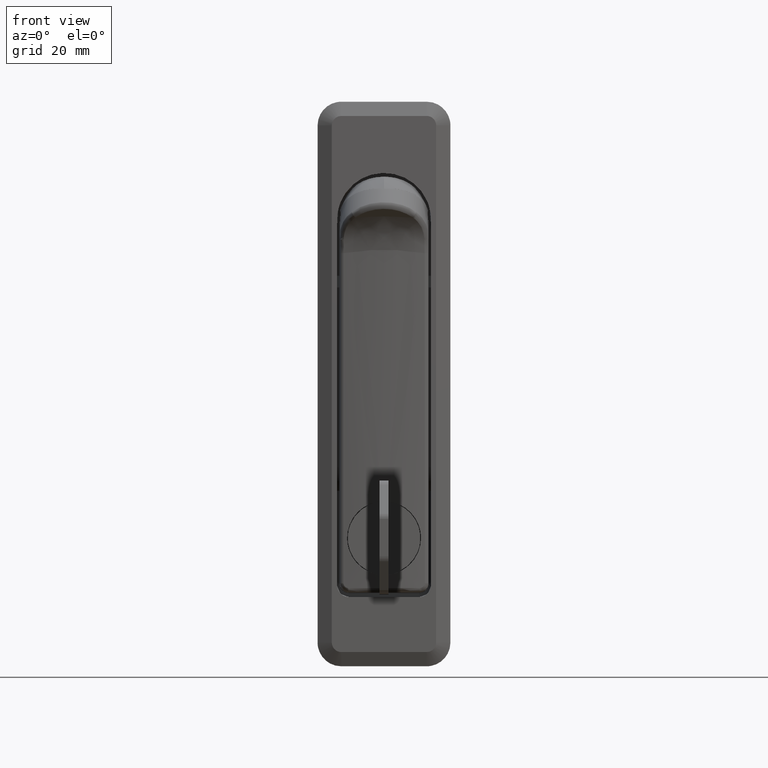
[diagram: clean part render]
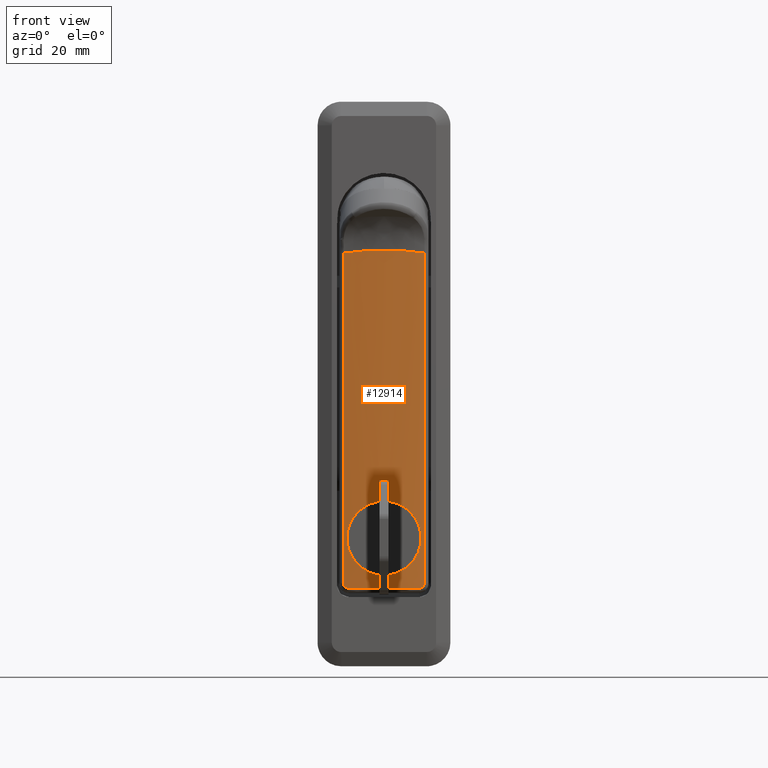
[diagram: same view with one face highlighted and labeled with its STEP entity id]
A machine part, front view. The second image highlights one B-rep face of the part: STEP entity #12914.
In plain terms, the highlighted face is a freeform B-spline surface patch.
Its self-contained STEP definition (entity closure, byte-faithful):
#8791=CARTESIAN_POINT('',(-3.491197107456163,7.797327951983970,-67.204189223243148));
#8792=VERTEX_POINT('',#8791);
#8798=CARTESIAN_POINT('',(-3.999998323577009,-0.002940226353813,-74.799999445837756));
#8799=VERTEX_POINT('',#8798);
#8800=CARTESIAN_POINT('',(-3.999998323577009,-0.002940226353813,-74.799999445837756));
#8801=CARTESIAN_POINT('',(-4.000023565192867,0.506348979247188,-74.800191421601241));
#8802=CARTESIAN_POINT('',(-3.993564944124163,1.012901770533408,-74.750984764370372));
#8803=CARTESIAN_POINT('',(-3.977643344512823,1.642588843660261,-74.626164489070774));
#8804=CARTESIAN_POINT('',(-3.974055729561870,1.768649122896287,-74.597919281776839));
#8805=CARTESIAN_POINT('',(-3.966188528740572,2.017853901839486,-74.535566507720446));
#8806=CARTESIAN_POINT('',(-3.961905189786248,2.141224163243140,-74.501430114660266));
#8807=CARTESIAN_POINT('',(-3.948070691180396,2.507708299198606,-74.390303111173637));
#8808=CARTESIAN_POINT('',(-3.927000421301342,2.986699852373011,-74.218927779461950));
#8809=CARTESIAN_POINT('',(-3.901346324607137,3.446693757243694,-74.001817372635699));
#8810=CARTESIAN_POINT('',(-3.880636226128714,3.784475307298896,-73.821585635172937));
#8811=CARTESIAN_POINT('',(-3.873487982194553,3.895864713851485,-73.758603372463725));
#8812=CARTESIAN_POINT('',(-3.858744604816455,4.116192703677323,-73.626721563491131));
#8813=CARTESIAN_POINT('',(-3.851146098197580,4.225149434575144,-73.557782994536964));
#8814=CARTESIAN_POINT('',(-3.812591990583683,4.757792707826024,-73.202092227255534));
#8815=CARTESIAN_POINT('',(-3.779635431371585,5.150345366779688,-72.879833049430673));
#8816=CARTESIAN_POINT('',(-3.729853976965031,5.690126189849043,-72.341074994834429));
#8817=CARTESIAN_POINT('',(-3.713200782840429,5.861819150159800,-72.152193949326858));
#8818=CARTESIAN_POINT('',(-3.688494300465722,6.106617365164051,-71.854454119026101));
#8819=CARTESIAN_POINT('',(-3.680327287910312,6.185857291302507,-71.753054954678703));
#8820=CARTESIAN_POINT('',(-3.664317396467136,6.338418430767005,-71.547616202591996));
#8821=CARTESIAN_POINT('',(-3.656455033264991,6.411933462873660,-71.443344023198009));
#8822=CARTESIAN_POINT('',(-3.617986602915667,6.765893003601817,-70.914329293289299));
#8823=CARTESIAN_POINT('',(-3.589908759333716,7.005885056853677,-70.466845538564328));
#8824=CARTESIAN_POINT('',(-3.560238116442298,7.251281287012525,-69.876673122324249));
#8825=CARTESIAN_POINT('',(-3.554575641529487,7.297606008987883,-69.757083870374458));
#8826=CARTESIAN_POINT('',(-3.543848011135010,7.384627159694803,-69.514725866104925));
#8827=CARTESIAN_POINT('',(-3.538813712189043,7.425073370699693,-69.392626629676556));
#8828=CARTESIAN_POINT('',(-3.524802663092019,7.536854892888210,-69.025182583112709));
#8829=CARTESIAN_POINT('',(-3.516888259161297,7.598896527352858,-68.778029785047750));
#8830=CARTESIAN_POINT('',(-3.504080386100771,7.698549987263378,-68.279431779770533));
#8831=CARTESIAN_POINT('',(-3.499186665551404,7.736160962401452,-68.027986431007491));
#8832=CARTESIAN_POINT('',(-3.493428263719736,7.780304268892214,-67.585544348059571));
#8833=CARTESIAN_POINT('',(-3.491853601356006,7.792322462566037,-67.395435253321082));
#8834=CARTESIAN_POINT('',(-3.491197107456163,7.797327951983970,-67.204189223243148));
#8835=B_SPLINE_CURVE_WITH_KNOTS('',3,(#8800,#8801,#8802,#8803,#8804,#8805,#8806,#8807,#8808,#8809,#8810,#8811,#8812,#8813,#8814,#8815,#8816,#8817,#8818,#8819,#8820,#8821,#8822,#8823,#8824,#8825,#8826,#8827,#8828,#8829,#8830,#8831,#8832,#8833,#8834),.UNSPECIFIED.,.F.,.U.,(4,2,2,2,1,2,2,2,2,2,2,2,2,2,2,2,2,4),(0.500000000000024,0.531250000000024,0.539062500000023,0.546875000000023,0.562500000000023,0.578125000000022,0.585937500000022,0.593750000000021,0.625000000000020,0.640625000000020,0.648437500000020,0.656250000000019,0.687500000000018,0.695312500000018,0.703125000000018,0.718750000000018,0.734375000000018,0.746009069075564),.UNSPECIFIED.);
#8836=EDGE_CURVE('',#8799,#8792,#8835,.T.);
#8838=CARTESIAN_POINT('',(-3.491188467564471,-7.797336506991591,-66.795819559280091));
#8839=VERTEX_POINT('',#8838);
#8840=CARTESIAN_POINT('',(-3.491188467564471,-7.797336506991591,-66.795819559280091));
#8841=CARTESIAN_POINT('',(-3.490959990383730,-7.799068884119842,-66.862381012040998));
#8842=CARTESIAN_POINT('',(-3.490843060125372,-7.799952315337134,-66.928991188665165));
#8843=CARTESIAN_POINT('',(-3.490819565078890,-7.800131705401326,-67.250288414561780));
#8844=CARTESIAN_POINT('',(-3.492435743652619,-7.787836756943453,-67.505640703274210));
#8845=CARTESIAN_POINT('',(-3.496534153015341,-7.756425566878799,-67.825751581145795));
#8846=CARTESIAN_POINT('',(-3.497459249515003,-7.749327731155067,-67.889903529215530));
#8847=CARTESIAN_POINT('',(-3.499507350297311,-7.733586755187108,-68.017667004227562));
#8848=CARTESIAN_POINT('',(-3.502877215829414,-7.707650228929772,-68.208634959493452));
#8849=CARTESIAN_POINT('',(-3.507120937682401,-7.674820454726839,-68.397595323767717));
#8850=CARTESIAN_POINT('',(-3.523125144799989,-7.550320981061131,-69.023076955285916));
#8851=CARTESIAN_POINT('',(-3.541875613996795,-7.402940252889314,-69.509550388619488));
#8852=CARTESIAN_POINT('',(-3.571444495669878,-7.158570581374277,-70.100179075634685));
#8853=CARTESIAN_POINT('',(-3.577664689181376,-7.106662270201758,-70.217423866409078));
#8854=CARTESIAN_POINT('',(-3.590684030624052,-6.996653452884679,-70.450117367004012));
#8855=CARTESIAN_POINT('',(-3.597448934922697,-6.938838864006331,-70.564939287788718));
#8856=CARTESIAN_POINT('',(-3.618333053365614,-6.757872187923476,-70.903402247021333));
#8857=CARTESIAN_POINT('',(-3.647821422338755,-6.495945528469384,-71.340016381742117));
#8858=CARTESIAN_POINT('',(-3.679684918339738,-6.193644932315226,-71.747994057147977));
#8859=CARTESIAN_POINT('',(-3.704136628064298,-5.951671101688135,-72.043187396869612));
#8860=CARTESIAN_POINT('',(-3.712379541522247,-5.868467201488850,-72.139783643652919));
#8861=CARTESIAN_POINT('',(-3.728992920677049,-5.696892714902044,-72.329324605847631));
#8862=CARTESIAN_POINT('',(-3.737372218638560,-5.608426703888169,-72.422364650071870));
#8863=CARTESIAN_POINT('',(-3.779347631015695,-5.153902318502097,-72.877234812955422));
#8864=CARTESIAN_POINT('',(-3.812339124571177,-4.760557199693451,-73.199593327084301));
#8865=CARTESIAN_POINT('',(-3.858233848058222,-4.127515446581851,-73.623297195465454));
#8866=CARTESIAN_POINT('',(-3.872935837709294,-3.909277535282653,-73.754484629209273));
#8867=CARTESIAN_POINT('',(-3.893755583160361,-3.570799524000098,-73.935831377022652));
#8868=CARTESIAN_POINT('',(-3.900504425012709,-3.455851382316552,-73.993826802935573));
#8869=CARTESIAN_POINT('',(-3.913462068071687,-3.223415051144678,-74.103951009254232));
#8870=CARTESIAN_POINT('',(-3.919652182639775,-3.106290149026580,-74.155925656921269));
#8871=CARTESIAN_POINT('',(-3.949077113794410,-2.516216653658580,-74.400663450505121));
#8872=CARTESIAN_POINT('',(-3.967733947392923,-2.030046964471589,-74.548453878626503));
#8873=CARTESIAN_POINT('',(-3.983682294353366,-1.404746820053529,-74.673522654884877));
#8874=CARTESIAN_POINT('',(-3.986503265551177,-1.278799549658105,-74.695525952652048));
#8875=CARTESIAN_POINT('',(-3.991374994977119,-1.025099640754837,-74.733409299674051));
#8876=CARTESIAN_POINT('',(-3.993429795015630,-0.896983985562943,-74.749320580467838));
#8877=CARTESIAN_POINT('',(-3.998352406828189,-0.512918099962745,-74.787369056681015));
#8878=CARTESIAN_POINT('',(-3.999985845029932,-0.257584697954178,-74.799903460879591));
#8879=CARTESIAN_POINT('',(-3.999998323577009,-0.002940226353813,-74.799999445837756));
#8880=B_SPLINE_CURVE_WITH_KNOTS('',3,(#8840,#8841,#8842,#8843,#8844,#8845,#8846,#8847,#8848,#8849,#8850,#8851,#8852,#8853,#8854,#8855,#8856,#8857,#8858,#8859,#8860,#8861,#8862,#8863,#8864,#8865,#8866,#8867,#8868,#8869,#8870,#8871,#8872,#8873,#8874,#8875,#8876,#8877,#8878,#8879),.UNSPECIFIED.,.F.,.U.,(4,2,2,2,1,2,2,2,2,1,2,2,2,2,2,2,2,2,2,2,4),(0.245909718808644,0.250000000000012,0.265625000000014,0.269531250000014,0.273437500000015,0.281250000000015,0.312500000000020,0.320312500000021,0.328125000000021,0.343750000000022,0.359375000000024,0.367187500000024,0.375000000000024,0.406250000000024,0.421875000000025,0.429687500000025,0.437500000000024,0.468750000000024,0.476562500000024,0.484375000000024,0.500000000000024),.UNSPECIFIED.);
#8881=EDGE_CURVE('',#8839,#8799,#8880,.T.);
#8957=CARTESIAN_POINT('',(-3.999998395618100,1.984090E-014,-59.200000000000003));
#8958=VERTEX_POINT('',#8957);
#8959=CARTESIAN_POINT('',(-3.999998395618100,1.984090E-014,-59.200000000000003));
#8960=CARTESIAN_POINT('',(-3.999998395618088,-0.515889338633278,-59.200000008262400));
#8961=CARTESIAN_POINT('',(-3.993350817766681,-1.023049431081741,-59.250676111453622));
#8962=CARTESIAN_POINT('',(-3.974367000252409,-1.771255986908472,-59.399519055839548));
#8963=CARTESIAN_POINT('',(-3.966535884138723,-2.018553846185001,-59.461362221205562));
#8964=CARTESIAN_POINT('',(-3.952652385703019,-2.386276885062024,-59.572882104289327));
#8965=CARTESIAN_POINT('',(-3.947657103286390,-2.508567609592859,-59.613279633587140));
#8966=CARTESIAN_POINT('',(-3.937027428036526,-2.750862550551177,-59.700047780636581));
#8967=CARTESIAN_POINT('',(-3.931413619473878,-2.870439949596608,-59.746249756601259));
#8968=CARTESIAN_POINT('',(-3.901980187655366,-3.460643254536340,-59.991061130357927));
#8969=CARTESIAN_POINT('',(-3.874071100749123,-3.908437458134178,-60.230677012453327));
#8970=CARTESIAN_POINT('',(-3.835727735686382,-4.438101312328104,-60.584436774813078));
#8971=CARTESIAN_POINT('',(-3.827886185041884,-4.542516514675999,-60.657925462469727));
#8972=CARTESIAN_POINT('',(-3.811908435864296,-4.748265723171206,-60.810465710819557));
#8973=CARTESIAN_POINT('',(-3.803749077827597,-4.849873721488221,-60.889749637675720));
#8974=CARTESIAN_POINT('',(-3.779115722099996,-5.147497015835997,-61.134070625503128));
#8975=CARTESIAN_POINT('',(-3.762490707969874,-5.336386147855291,-61.305484799353103));
#8976=CARTESIAN_POINT('',(-3.712729072197590,-5.875367766462524,-61.844588008489602));
#8977=CARTESIAN_POINT('',(-3.679697279676109,-6.198041491101114,-62.236897318762409));
#8978=CARTESIAN_POINT('',(-3.640962075699452,-6.554426797853124,-62.769652445715217));
#8979=CARTESIAN_POINT('',(-3.633326358417016,-6.623482424806859,-62.878610615169563));
#8980=CARTESIAN_POINT('',(-3.618524066059667,-6.755421207072593,-63.098634894236334));
#8981=CARTESIAN_POINT('',(-3.611342883004288,-6.818444235516239,-63.209882585169282));
#8982=CARTESIAN_POINT('',(-3.590525663228052,-6.998829714220676,-63.547270977299462));
#8983=CARTESIAN_POINT('',(-3.564707075701675,-7.216228653350276,-64.006825912988646));
#8984=CARTESIAN_POINT('',(-3.543451425375061,-7.388010228921909,-64.485567727223426));
#8985=CARTESIAN_POINT('',(-3.529480582204292,-7.499468801437466,-64.851944717641643));
#8986=CARTESIAN_POINT('',(-3.525152177716926,-7.533720201596373,-64.975292645955022));
#8987=CARTESIAN_POINT('',(-3.517197245995261,-7.596308971304514,-65.224481436244702));
#8988=CARTESIAN_POINT('',(-3.513568201217277,-7.624665234918170,-65.350507081297053));
#8989=CARTESIAN_POINT('',(-3.499140822988542,-7.736901005513666,-65.914023502702790));
#8990=CARTESIAN_POINT('',(-3.492705570104087,-7.785833946645108,-66.353847403243989));
#8991=CARTESIAN_POINT('',(-3.491188467564471,-7.797336506991591,-66.795819559280091));
#8992=B_SPLINE_CURVE_WITH_KNOTS('',3,(#8959,#8960,#8961,#8962,#8963,#8964,#8965,#8966,#8967,#8968,#8969,#8970,#8971,#8972,#8973,#8974,#8975,#8976,#8977,#8978,#8979,#8980,#8981,#8982,#8983,#8984,#8985,#8986,#8987,#8988,#8989,#8990,#8991),.UNSPECIFIED.,.F.,.U.,(4,2,2,2,2,2,2,2,2,2,2,2,1,2,2,2,4),(0.0,0.031250000000001,0.046875000000001,0.054687500000001,0.062500000000002,0.093750000000003,0.101562500000003,0.109375000000004,0.125000000000004,0.156250000000004,0.164062500000005,0.171875000000005,0.187500000000006,0.203125000000007,0.210937500000007,0.218750000000008,0.245909718808644),.UNSPECIFIED.);
#8993=EDGE_CURVE('',#8958,#8839,#8992,.T.);
#8995=CARTESIAN_POINT('',(-3.491197107456163,7.797327951983970,-67.204189223243148));
#8996=CARTESIAN_POINT('',(-3.490971833450630,7.799045035245899,-67.138584516487825));
#8997=CARTESIAN_POINT('',(-3.490854605030716,7.799936896765336,-67.072846020577984));
#8998=CARTESIAN_POINT('',(-3.490786053458983,7.800457367762875,-66.491226793549316));
#8999=CARTESIAN_POINT('',(-3.497429316561616,7.750261267879341,-65.984053299867398));
#9000=CARTESIAN_POINT('',(-3.516480946701881,7.602081566373941,-65.235624665391413));
#9001=CARTESIAN_POINT('',(-3.524346655953595,7.540450189729631,-64.988218817422037));
#9002=CARTESIAN_POINT('',(-3.538295759823523,7.429222912871607,-64.620283444550722));
#9003=CARTESIAN_POINT('',(-3.543317108642946,7.388903599485418,-64.497873241026866));
#9004=CARTESIAN_POINT('',(-3.553990138369717,7.302379520222226,-64.255589581334320));
#9005=CARTESIAN_POINT('',(-3.559626819191621,7.256297373474992,-64.136006217724514));
#9006=CARTESIAN_POINT('',(-3.589178126095062,7.012068798457859,-63.545719148084324));
#9007=CARTESIAN_POINT('',(-3.617192336566250,6.772867385892523,-63.097686811516439));
#9008=CARTESIAN_POINT('',(-3.655643481467142,6.419476773876536,-62.567557466538517));
#9009=CARTESIAN_POINT('',(-3.663505440239856,6.346054411611964,-62.463040695674373));
#9010=CARTESIAN_POINT('',(-3.679520956470749,6.193629301214291,-62.257072328633740));
#9011=CARTESIAN_POINT('',(-3.687696992418851,6.114400179868722,-62.155357259018558));
#9012=CARTESIAN_POINT('',(-3.712351546643635,5.870446405018803,-61.857656932983247));
#9013=CARTESIAN_POINT('',(-3.728982557099540,5.699251535146458,-61.668670191266472));
#9014=CARTESIAN_POINT('',(-3.778736507970242,5.160709266050752,-61.129286150302100));
#9015=CARTESIAN_POINT('',(-3.811727810111070,4.768646309241612,-60.806198113672117));
#9016=CARTESIAN_POINT('',(-3.850381849092963,4.235960143774459,-60.449191868981551));
#9017=CARTESIAN_POINT('',(-3.857995966413459,4.127056801030951,-60.380042274178933));
#9018=CARTESIAN_POINT('',(-3.872746208609263,3.907239195695182,-60.247969170474633));
#9019=CARTESIAN_POINT('',(-3.879900860617830,3.796084982364979,-60.184870418840617));
#9020=CARTESIAN_POINT('',(-3.900638364618513,3.458946346155408,-60.004236517497453));
#9021=CARTESIAN_POINT('',(-3.926350879622204,2.999642816698500,-59.786449699380007));
#9022=CARTESIAN_POINT('',(-3.947513969199842,2.520974789978189,-59.614209135958859));
#9023=CARTESIAN_POINT('',(-3.961426675702881,2.154579438273346,-59.502394233625473));
#9024=CARTESIAN_POINT('',(-3.965737505933273,2.031213067537355,-59.468022068129038));
#9025=CARTESIAN_POINT('',(-3.973661683193957,1.781961170830215,-59.405190416436717));
#9026=CARTESIAN_POINT('',(-3.977274514091048,1.656007216302244,-59.376735677601332));
#9027=CARTESIAN_POINT('',(-3.993347920656458,1.025857423060997,-59.250682447031309));
#9028=CARTESIAN_POINT('',(-3.999998669256848,0.515889622280088,-59.199999998175393));
#9029=CARTESIAN_POINT('',(-3.999998395618100,1.984090E-014,-59.200000000000003));
#9030=B_SPLINE_CURVE_WITH_KNOTS('',3,(#8995,#8996,#8997,#8998,#8999,#9000,#9001,#9002,#9003,#9004,#9005,#9006,#9007,#9008,#9009,#9010,#9011,#9012,#9013,#9014,#9015,#9016,#9017,#9018,#9019,#9020,#9021,#9022,#9023,#9024,#9025,#9026,#9027,#9028,#9029),.UNSPECIFIED.,.F.,.U.,(4,2,2,2,2,2,2,2,2,2,2,2,2,1,2,2,2,4),(0.746009069075564,0.750000000000018,0.781250000000016,0.796875000000015,0.804687500000014,0.812500000000013,0.843750000000011,0.851562500000010,0.859375000000009,0.875000000000008,0.906250000000006,0.914062500000005,0.921875000000005,0.937500000000004,0.953125000000003,0.960937500000003,0.968750000000002,1.0),.UNSPECIFIED.);
#9031=EDGE_CURVE('',#8792,#8958,#9030,.T.);
#9931=CARTESIAN_POINT('',(-3.388784084128905,8.542372881356171,-6.926287130361770));
#9932=VERTEX_POINT('',#9931);
#10155=CARTESIAN_POINT('',(-3.388784084128945,8.542372881355940,-76.499999612516291));
#10156=VERTEX_POINT('',#10155);
#10170=CARTESIAN_POINT('',(-3.388784084128905,8.542372881356171,-6.926287130361770));
#10171=CARTESIAN_POINT('',(-3.388784084128945,8.542372881355940,-76.499999612516291));
#10172=QUASI_UNIFORM_CURVE('',1,(#10170,#10171),.UNSPECIFIED.,.F.,.U.);
#10173=EDGE_CURVE('',#9932,#10156,#10172,.T.);
#10384=CARTESIAN_POINT('',(-3.526194290381995,7.525423728813570,-77.499999610228997));
#10385=VERTEX_POINT('',#10384);
#10399=CARTESIAN_POINT('',(-3.388784084128945,8.542372881355940,-76.499999612516291));
#10400=CARTESIAN_POINT('',(-3.388784084128946,8.542372881355938,-76.566918393486375));
#10401=CARTESIAN_POINT('',(-3.389758029182564,8.535609880814493,-76.633089117830494));
#10402=CARTESIAN_POINT('',(-3.393625675872219,8.508655820061980,-76.763945504960404));
#10403=CARTESIAN_POINT('',(-3.396482515539164,8.488719452528903,-76.827178274988242));
#10404=CARTESIAN_POINT('',(-3.402014806000773,8.449888597997695,-76.917962410082680));
#10405=CARTESIAN_POINT('',(-3.404069836801238,8.435434599871126,-76.947595457276165));
#10406=CARTESIAN_POINT('',(-3.408601050111975,8.403463055095577,-77.005587477449012));
#10407=CARTESIAN_POINT('',(-3.411091929781983,8.385840786660891,-77.034077519044061));
#10408=CARTESIAN_POINT('',(-3.419036477992643,8.329427102922825,-77.115862310412197));
#10409=CARTESIAN_POINT('',(-3.424982433208176,8.286950142470746,-77.165956949605118));
#10410=CARTESIAN_POINT('',(-3.438069931488587,8.192552876141475,-77.257563103356745));
#10411=CARTESIAN_POINT('',(-3.445284040905648,8.140092726117180,-77.299302558096940));
#10412=CARTESIAN_POINT('',(-3.460277094893807,8.029841346133518,-77.370739309267776));
#10413=CARTESIAN_POINT('',(-3.468104760704285,7.971708157609203,-77.400907570186959));
#10414=CARTESIAN_POINT('',(-3.480304726384446,7.879981611528120,-77.437815948487426));
#10415=CARTESIAN_POINT('',(-3.484465556010412,7.848514696289875,-77.448743679865274));
#10416=CARTESIAN_POINT('',(-3.492772156106052,7.785299389045073,-77.467341094337883));
#10417=CARTESIAN_POINT('',(-3.496934400297309,7.753428638557966,-77.475073323916561));
#10418=CARTESIAN_POINT('',(-3.509441942556824,7.657044281322142,-77.493677067103278));
#10419=CARTESIAN_POINT('',(-3.517807180294485,7.591765874591725,-77.499999610368576));
#10420=CARTESIAN_POINT('',(-3.526194290381985,7.525423728813561,-77.499999610228997));
#10421=B_SPLINE_CURVE_WITH_KNOTS('',3,(#10399,#10400,#10401,#10402,#10403,#10404,#10405,#10406,#10407,#10408,#10409,#10410,#10411,#10412,#10413,#10414,#10415,#10416,#10417,#10418,#10419,#10420),.UNSPECIFIED.,.F.,.U.,(4,2,2,2,2,2,2,2,2,2,4),(0.0,0.124999999999995,0.249999999999991,0.312500000000000,0.375000000000009,0.500000000000005,0.625000000000002,0.749999999999999,0.812499999999999,0.874999999999999,1.0),.UNSPECIFIED.);
#10422=EDGE_CURVE('',#10156,#10385,#10421,.T.);
#10643=CARTESIAN_POINT('',(-3.526194290382000,-7.525423728813521,-77.499999610233488));
#10644=VERTEX_POINT('',#10643);
#10658=CARTESIAN_POINT('',(-3.526194290381995,7.525423728813570,-77.499999610228997));
#10659=CARTESIAN_POINT('',(-3.684757539852614,6.271186440677979,-77.499999607549370));
#10660=CARTESIAN_POINT('',(-3.803088144389838,5.016949152542388,-77.499999605546364));
#10661=CARTESIAN_POINT('',(-3.960709512140426,2.508474576271207,-77.499999602878148));
#10662=CARTESIAN_POINT('',(-4.039287279095778,2.341877E-014,-77.499999601548041));
#10663=CARTESIAN_POINT('',(-3.960709512140425,-2.508474576271155,-77.499999602878162));
#10664=CARTESIAN_POINT('',(-3.803088144389839,-5.016949152542336,-77.499999605546350));
#10665=CARTESIAN_POINT('',(-3.684757539852613,-6.271186440677930,-77.499999607549370));
#10666=CARTESIAN_POINT('',(-3.526194290381995,-7.525423728813521,-77.499999610233488));
#10667=B_SPLINE_CURVE_WITH_KNOTS('',3,(#10658,#10659,#10660,#10661,#10662,#10663,#10664,#10665,#10666),.UNSPECIFIED.,.F.,.U.,(4,2,1,2,4),(0.0,0.250000000000000,0.500000000000000,0.750000000000000,1.0),.UNSPECIFIED.);
#10668=EDGE_CURVE('',#10385,#10644,#10667,.T.);
#10735=CARTESIAN_POINT('',(-3.388784084128940,-8.542372881355920,-6.926287130361730));
#10736=VERTEX_POINT('',#10735);
#10824=CARTESIAN_POINT('',(-3.388784084128950,-8.542372881355888,-76.499999612516291));
#10825=VERTEX_POINT('',#10824);
#10839=CARTESIAN_POINT('',(-3.526194290382000,-7.525423728813521,-77.499999610233488));
#10840=CARTESIAN_POINT('',(-3.517808090479817,-7.591758675014457,-77.499999610368604));
#10841=CARTESIAN_POINT('',(-3.509400447826152,-7.657372278979740,-77.493677770478243));
#10842=CARTESIAN_POINT('',(-3.496766167899409,-7.754720843382182,-77.474791177826631));
#10843=CARTESIAN_POINT('',(-3.492548282343307,-7.787009708503789,-77.466893609053031));
#10844=CARTESIAN_POINT('',(-3.484256580611754,-7.850098114408210,-77.448219191209617));
#10845=CARTESIAN_POINT('',(-3.476071276995870,-7.911988845546121,-77.426619537855032));
#10846=CARTESIAN_POINT('',(-3.468106015544002,-7.971514406625317,-77.399239935883898));
#10847=CARTESIAN_POINT('',(-3.460258687488977,-8.029838843531518,-77.368923066466152));
#10848=CARTESIAN_POINT('',(-3.456378281275373,-8.058515794952967,-77.352219730054088));
#10849=CARTESIAN_POINT('',(-3.445043578638742,-8.141851563927157,-77.298038803783271));
#10850=CARTESIAN_POINT('',(-3.437987405478356,-8.193151093071432,-77.257047134717368));
#10851=CARTESIAN_POINT('',(-3.428188828549142,-8.263821601403926,-77.188368821909194));
#10852=CARTESIAN_POINT('',(-3.425054492952083,-8.286324591999088,-77.164269131503133));
#10853=CARTESIAN_POINT('',(-3.419067442982660,-8.329147673068514,-77.113568458870773));
#10854=CARTESIAN_POINT('',(-3.416226892842821,-8.349380069617247,-77.087039324918294));
#10855=CARTESIAN_POINT('',(-3.408328240948813,-8.405460755588743,-77.005417963294121));
#10856=CARTESIAN_POINT('',(-3.403823511497365,-8.437194468206947,-76.947789404010635));
#10857=CARTESIAN_POINT('',(-3.398270236325032,-8.476170984622696,-76.856439866430335));
#10858=CARTESIAN_POINT('',(-3.396613875795591,-8.487765867098691,-76.824978523010543));
#10859=CARTESIAN_POINT('',(-3.393782529870046,-8.507555825772043,-76.761537832522961));
#10860=CARTESIAN_POINT('',(-3.392602079429012,-8.515789582749607,-76.729526238204400));
#10861=CARTESIAN_POINT('',(-3.389757593024464,-8.535612497862790,-76.632636020937582));
#10862=CARTESIAN_POINT('',(-3.388784084128950,-8.542372881355892,-76.566910639540907));
#10863=CARTESIAN_POINT('',(-3.388784084128950,-8.542372881355888,-76.499999612516291));
#10864=B_SPLINE_CURVE_WITH_KNOTS('',3,(#10839,#10840,#10841,#10842,#10843,#10844,#10845,#10846,#10847,#10848,#10849,#10850,#10851,#10852,#10853,#10854,#10855,#10856,#10857,#10858,#10859,#10860,#10861,#10862,#10863),.UNSPECIFIED.,.F.,.U.,(4,2,2,1,2,2,2,2,2,2,2,2,4),(0.0,0.124999999999994,0.187499999999991,0.249999999999989,0.312499999999988,0.374999999999986,0.499999999999983,0.562499999999983,0.624999999999982,0.750000000000005,0.812500000000004,0.875000000000002,1.0),.UNSPECIFIED.);
#10865=EDGE_CURVE('',#10644,#10825,#10864,.T.);
#10916=CARTESIAN_POINT('',(-3.388784084128950,-8.542372881355888,-76.499999612516291));
#10917=CARTESIAN_POINT('',(-3.388784084128940,-8.542372881355920,-6.926287130361730));
#10918=QUASI_UNIFORM_CURVE('',1,(#10916,#10917),.UNSPECIFIED.,.F.,.U.);
#10919=EDGE_CURVE('',#10825,#10736,#10918,.T.);
#12536=CARTESIAN_POINT('',(-3.388784084128939,-8.542372881355933,-6.926287130361711));
#12537=CARTESIAN_POINT('',(-4.617503169696017,1.318390E-013,-5.492782457589343));
#12538=CARTESIAN_POINT('',(-3.388784084128905,8.542372881356171,-6.926287130361770));
#12546=(BOUNDED_CURVE()B_SPLINE_CURVE(2,(#12536,#12537,#12538),.UNSPECIFIED.,.F.,.U.)CURVE()GEOMETRIC_REPRESENTATION_ITEM()QUASI_UNIFORM_CURVE()RATIONAL_B_SPLINE_CURVE((1.0,0.989813094808508,1.0))REPRESENTATION_ITEM(''));
#12547=EDGE_CURVE('',#10736,#9932,#12546,.T.);
#12886=CARTESIAN_POINT('',(-3.261476060548880,9.384948852759285,-4.431034343559624));
#12887=CARTESIAN_POINT('',(-3.261476060548880,9.384948852759285,-79.326723741900338));
#12888=CARTESIAN_POINT('',(-4.747850618967134,-0.000797844147491,-4.431034343559624));
#12889=CARTESIAN_POINT('',(-4.747850618967134,-0.000797844147491,-79.326723741900338));
#12890=CARTESIAN_POINT('',(-3.261229521873975,-9.386505494617275,-4.431034343559623));
#12891=CARTESIAN_POINT('',(-3.261229521873975,-9.386505494617275,-79.326723741900338));
#12899=(BOUNDED_SURFACE()B_SPLINE_SURFACE(1,2,((#12886,#12888,#12890),(#12887,#12889,#12891)),.UNSPECIFIED.,.F.,.F.,.U.)B_SPLINE_SURFACE_WITH_KNOTS((2,2),(3,3),(0.0,74.895689398340721),(0.0,18.887710965898570),.UNSPECIFIED.)GEOMETRIC_REPRESENTATION_ITEM()RATIONAL_B_SPLINE_SURFACE(((0.997953309271110,0.984714430866851,0.996023848700106),(0.997953309271110,0.984714430866851,0.996023848700106)))REPRESENTATION_ITEM('')SURFACE());
#12900=ORIENTED_EDGE('',*,*,#10865,.T.);
#12901=ORIENTED_EDGE('',*,*,#10919,.T.);
#12902=ORIENTED_EDGE('',*,*,#12547,.T.);
#12903=ORIENTED_EDGE('',*,*,#10173,.T.);
#12904=ORIENTED_EDGE('',*,*,#10422,.T.);
#12905=ORIENTED_EDGE('',*,*,#10668,.T.);
#12906=EDGE_LOOP('',(#12900,#12901,#12902,#12903,#12904,#12905));
#12907=FACE_OUTER_BOUND('',#12906,.T.);
#12908=ORIENTED_EDGE('',*,*,#8993,.T.);
#12909=ORIENTED_EDGE('',*,*,#8881,.T.);
#12910=ORIENTED_EDGE('',*,*,#8836,.T.);
#12911=ORIENTED_EDGE('',*,*,#9031,.T.);
#12912=EDGE_LOOP('',(#12908,#12909,#12910,#12911));
#12913=FACE_BOUND('',#12912,.T.);
#12914=ADVANCED_FACE('',(#12907,#12913),#12899,.T.);